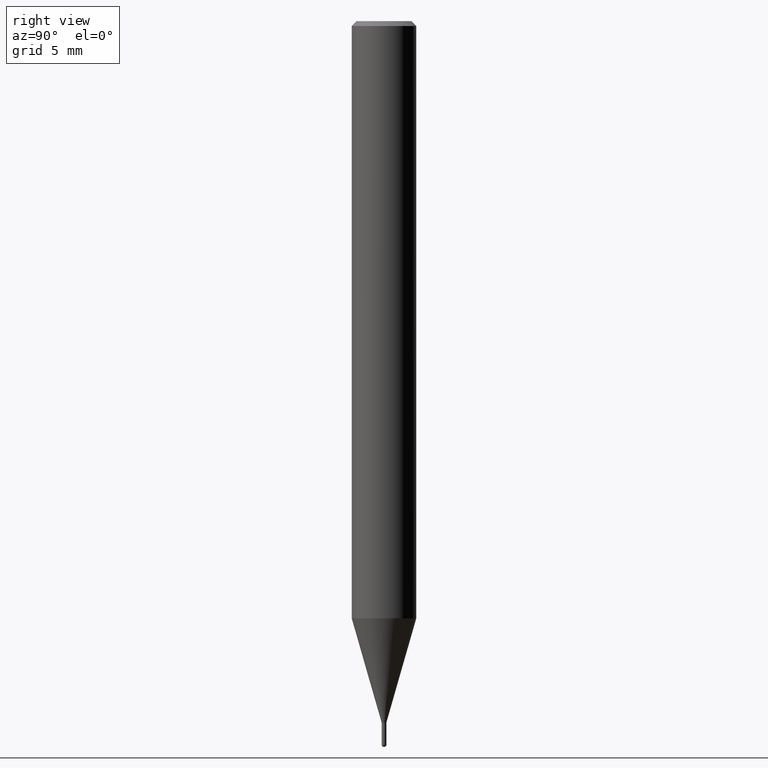
[diagram: clean part render]
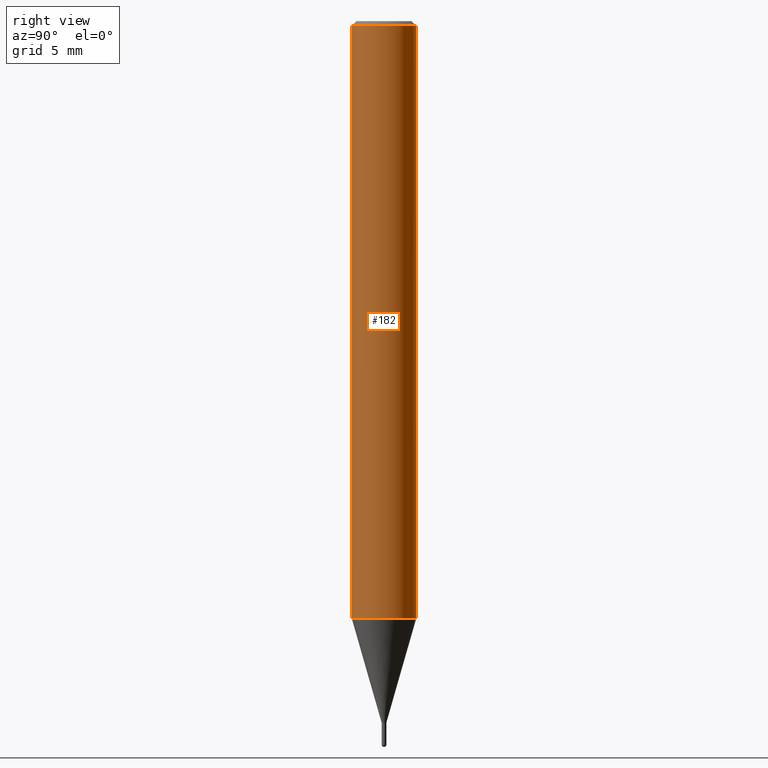
[diagram: same view with one face highlighted and labeled with its STEP entity id]
A machine part, right view. The second image highlights one B-rep face of the part: STEP entity #182.
In plain terms, the highlighted cylindrical surface (edge-blend (fillet) strip) has radius 2 mm, axis along (-0, -0, 1).
Its self-contained STEP definition (entity closure, byte-faithful):
#100=EDGE_CURVE('',#136,#130,#242,.T.);
#102=EDGE_CURVE('',#104,#136,#244,.T.);
#104=VERTEX_POINT('',#246);
#110=VERTEX_POINT('',#252);
#114=EDGE_CURVE('',#110,#130,#257,.T.);
#128=EDGE_CURVE('',#110,#104,#273,.T.);
#130=VERTEX_POINT('',#275);
#136=VERTEX_POINT('',#281);
#182=ADVANCED_FACE('',(#333),#334,.T.);
#242=LINE('',#397,#398);
#244=CIRCLE('',#401,2.0);
#246=CARTESIAN_POINT('',(0.0,2.0,-37.031));
#252=CARTESIAN_POINT('',(0.0,2.0,-0.299999999999997));
#257=CIRCLE('',#418,2.0);
#273=LINE('',#439,#440);
#275=CARTESIAN_POINT('',(2.44921270764475E-016,-2.0,-0.299999999999997));
#281=CARTESIAN_POINT('',(2.44921270764475E-016,-2.0,-37.031));
#333=FACE_OUTER_BOUND('',#513,.T.);
#334=CYLINDRICAL_SURFACE('',#514,2.0);
#397=CARTESIAN_POINT('',(2.44921270764475E-016,-2.0,-18.6655));
#398=VECTOR('',#567,1.0);
#401=AXIS2_PLACEMENT_3D('',#568,#569,#570);
#418=AXIS2_PLACEMENT_3D('',#583,#584,#585);
#439=CARTESIAN_POINT('',(-2.44921270764475E-016,2.0,-18.6655));
#440=VECTOR('',#607,1.0);
#513=EDGE_LOOP('',(#675,#676,#677,#678));
#514=AXIS2_PLACEMENT_3D('',#679,#680,#681);
#567=DIRECTION('',(-0.0,-0.0,1.0));
#568=CARTESIAN_POINT('',(0.0,0.0,-37.031));
#569=DIRECTION('',(0.0,0.0,-1.0));
#570=DIRECTION('',(0.0,1.0,0.0));
#583=CARTESIAN_POINT('',(0.0,0.0,-0.299999999999997));
#584=DIRECTION('',(0.0,0.0,-1.0));
#585=DIRECTION('',(0.0,1.0,0.0));
#607=DIRECTION('',(0.0,0.0,-1.0));
#675=ORIENTED_EDGE('',*,*,#128,.F.);
#676=ORIENTED_EDGE('',*,*,#114,.T.);
#677=ORIENTED_EDGE('',*,*,#100,.F.);
#678=ORIENTED_EDGE('',*,*,#102,.F.);
#679=CARTESIAN_POINT('',(0.0,0.0,-18.6655));
#680=DIRECTION('',(-0.0,-0.0,1.0));
#681=DIRECTION('',(0.0,1.0,0.0));